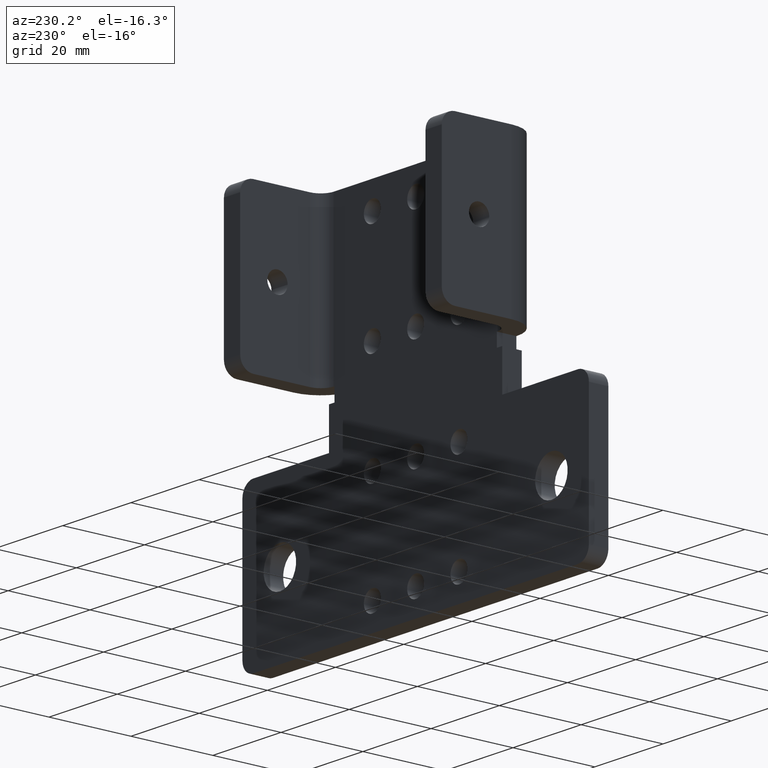
[diagram: clean part render]
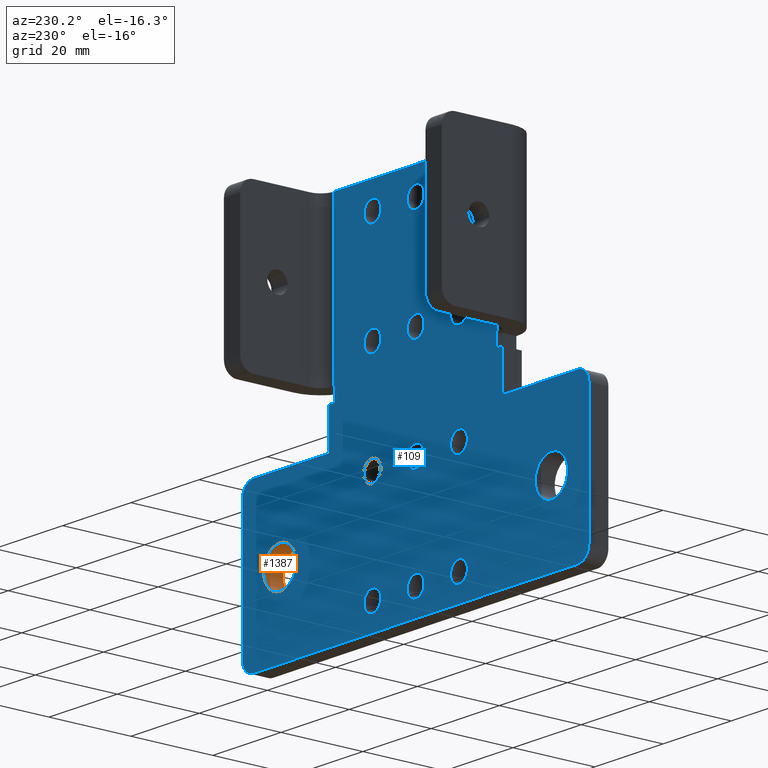
[diagram: same view with the hole feature highlighted: cylindrical wall and planar end face, labeled with their STEP entity ids]
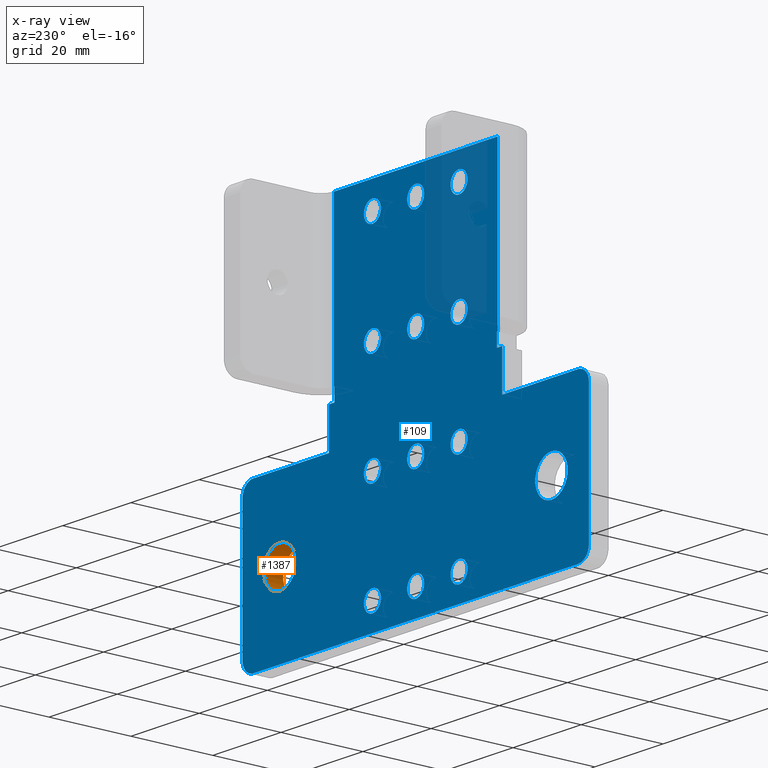
[diagram: x-ray of the same camera — body ghosted, the hole faces saturated]
A machine part, auxiliary view. The highlighted faces form one hole feature of diameter 9.525 mm: the cylindrical wall (entity #1387, orange) and its adjacent planar end face (entity #109, blue) — they share a circular edge in the B-rep.
The next image is the same camera in x-ray (body ghosted, the hole faces saturated) — the bore reads through the body.
Wall:
#104 = EDGE_LOOP ( 'NONE', ( #286 ) ) ;
#269 = CARTESIAN_POINT ( 'NONE',  ( 3.567499999999999449, 0.1875000000000000278, -0.5625000000000001110 ) ) ;
#285 = DIRECTION ( 'NONE',  ( 0.0000000000000000000, 0.0000000000000000000, 1.000000000000000000 ) ) ;
#286 = ORIENTED_EDGE ( 'NONE', *, *, #1227, .F. ) ;
#349 = CARTESIAN_POINT ( 'NONE',  ( 3.567499999999999449, 0.1875000000000000278, -0.7500000000000001110 ) ) ;
#433 = EDGE_CURVE ( 'NONE', #1686, #1686, #971, .T. ) ;
#541 = CARTESIAN_POINT ( 'NONE',  ( 3.567499999999999449, 0.0000000000000000000, -0.7500000000000001110 ) ) ;
#788 = DIRECTION ( 'NONE',  ( 0.0000000000000000000, 1.000000000000000000, -0.0000000000000000000 ) ) ;
#841 = AXIS2_PLACEMENT_3D ( 'NONE', #349, #856, #984 ) ;
#848 = VERTEX_POINT ( 'NONE', #1755 ) ;
#855 = ORIENTED_EDGE ( 'NONE', *, *, #433, .T. ) ;
#856 = DIRECTION ( 'NONE',  ( 0.0000000000000000000, 1.000000000000000000, -0.0000000000000000000 ) ) ;
#871 = DIRECTION ( 'NONE',  ( 0.0000000000000000000, 0.0000000000000000000, 1.000000000000000000 ) ) ;
#874 = AXIS2_PLACEMENT_3D ( 'NONE', #541, #788, #871 ) ;
#971 = CIRCLE ( 'NONE', #841, 0.1874999999999999167 ) ;
#984 = DIRECTION ( 'NONE',  ( 0.0000000000000000000, 0.0000000000000000000, 1.000000000000000000 ) ) ;
#1056 = DIRECTION ( 'NONE',  ( 0.0000000000000000000, 1.000000000000000000, -0.0000000000000000000 ) ) ;
#1138 = AXIS2_PLACEMENT_3D ( 'NONE', #1342, #1056, #285 ) ;
#1203 = CIRCLE ( 'NONE', #1138, 0.1874999999999999167 ) ;
#1227 = EDGE_CURVE ( 'NONE', #848, #848, #1203, .T. ) ;
#1234 = FACE_OUTER_BOUND ( 'NONE', #1721, .T. ) ;
#1342 = CARTESIAN_POINT ( 'NONE',  ( 3.567499999999999449, 0.0000000000000000000, -0.7500000000000001110 ) ) ;
#1387 = ADVANCED_FACE ( 'NONE', ( #1791, #1234 ), #1646, .F. ) ;
#1646 = CYLINDRICAL_SURFACE ( 'NONE', #874, 0.1874999999999999167 ) ;
#1686 = VERTEX_POINT ( 'NONE', #269 ) ;
#1721 = EDGE_LOOP ( 'NONE', ( #855 ) ) ;
#1755 = CARTESIAN_POINT ( 'NONE',  ( 3.567499999999999449, 0.0000000000000000000, -0.5625000000000001110 ) ) ;
#1791 = FACE_OUTER_BOUND ( 'NONE', #104, .T. ) ;
End face:
#3 = DIRECTION ( 'NONE',  ( -1.000000000000000000, 0.0000000000000000000, 0.0000000000000000000 ) ) ;
#15 = CARTESIAN_POINT ( 'NONE',  ( 2.999999999999999556, 0.1875000000000000278, -2.372753173347996454E-16 ) ) ;
#21 = CARTESIAN_POINT ( 'NONE',  ( 3.875000000000000000, 0.1875000000000000278, -1.500000000000000222 ) ) ;
#22 = ORIENTED_EDGE ( 'NONE', *, *, #1204, .F. ) ;
#25 = EDGE_LOOP ( 'NONE', ( #102 ) ) ;
#26 = EDGE_CURVE ( 'NONE', #198, #1175, #1494, .T. ) ;
#27 = DIRECTION ( 'NONE',  ( -0.0000000000000000000, -1.000000000000000000, 0.0000000000000000000 ) ) ;
#33 = VECTOR ( 'NONE', #319, 39.37007874015748143 ) ;
#44 = EDGE_CURVE ( 'NONE', #404, #586, #1525, .T. ) ;
#48 = DIRECTION ( 'NONE',  ( -0.0000000000000000000, -0.0000000000000000000, -1.000000000000000000 ) ) ;
#51 = DIRECTION ( 'NONE',  ( 0.0000000000000000000, 0.0000000000000000000, 1.000000000000000000 ) ) ;
#54 = EDGE_CURVE ( 'NONE', #1110, #1110, #1790, .T. ) ;
#58 = AXIS2_PLACEMENT_3D ( 'NONE', #502, #27, #671 ) ;
#71 = CIRCLE ( 'NONE', #399, 0.09800000000000015643 ) ;
#74 = EDGE_CURVE ( 'NONE', #1281, #1800, #649, .T. ) ;
#84 = CARTESIAN_POINT ( 'NONE',  ( 1.499999999999999778, 0.1875000000000000278, -0.2500000000000000555 ) ) ;
#90 = EDGE_CURVE ( 'NONE', #1679, #875, #1132, .T. ) ;
#95 = VERTEX_POINT ( 'NONE', #1334 ) ;
#102 = ORIENTED_EDGE ( 'NONE', *, *, #305, .T. ) ;
#106 = AXIS2_PLACEMENT_3D ( 'NONE', #1380, #142, #51 ) ;
#107 = VECTOR ( 'NONE', #468, 39.37007874015748143 ) ;
#109 = ADVANCED_FACE ( 'NONE', ( #472, #883, #1055, #669, #1294, #552, #271, #447, #868, #1502, #471, #638, #1013, #1379, #1742 ), #680, .T. ) ;
#112 = VERTEX_POINT ( 'NONE', #200 ) ;
#113 = ORIENTED_EDGE ( 'NONE', *, *, #637, .F. ) ;
#115 = VECTOR ( 'NONE', #397, 39.37007874015748143 ) ;
#123 = CARTESIAN_POINT ( 'NONE',  ( 1.500000000000020872, 0.1875000000000000278, 1.750000000000000000 ) ) ;
#127 = DIRECTION ( 'NONE',  ( 1.000000000000000000, 0.0000000000000000000, -1.092739197465711007E-15 ) ) ;
#132 = CARTESIAN_POINT ( 'NONE',  ( 2.500000000000010658, 0.1875000000000000278, 0.8480000000000000870 ) ) ;
#134 = LINE ( 'NONE', #424, #1292 ) ;
#142 = DIRECTION ( 'NONE',  ( 0.0000000000000000000, 1.000000000000000000, -0.0000000000000000000 ) ) ;
#150 = DIRECTION ( 'NONE',  ( 0.0000000000000000000, 1.000000000000000000, -0.0000000000000000000 ) ) ;
#164 = LINE ( 'NONE', #1348, #581 ) ;
#168 = EDGE_CURVE ( 'NONE', #1451, #1014, #1465, .T. ) ;
#191 = AXIS2_PLACEMENT_3D ( 'NONE', #1649, #755, #729 ) ;
#197 = EDGE_CURVE ( 'NONE', #112, #1544, #1190, .T. ) ;
#198 = VERTEX_POINT ( 'NONE', #1039 ) ;
#200 = CARTESIAN_POINT ( 'NONE',  ( 2.945000000000000284, 0.1874999999999999722, 0.4999999999999996114 ) ) ;
#204 = VERTEX_POINT ( 'NONE', #132 ) ;
#214 = DIRECTION ( 'NONE',  ( 0.0000000000000000000, 0.0000000000000000000, 1.000000000000000000 ) ) ;
#218 = EDGE_CURVE ( 'NONE', #497, #1014, #799, .T. ) ;
#220 = EDGE_LOOP ( 'NONE', ( #1145 ) ) ;
#230 = AXIS2_PLACEMENT_3D ( 'NONE', #1176, #358, #1489 ) ;
#239 = DIRECTION ( 'NONE',  ( -0.0000000000000000000, -1.000000000000000000, 0.0000000000000000000 ) ) ;
#243 = EDGE_CURVE ( 'NONE', #586, #1693, #723, .T. ) ;
#252 = VECTOR ( 'NONE', #48, 39.37007874015748143 ) ;
#259 = EDGE_CURVE ( 'NONE', #540, #540, #334, .T. ) ;
#260 = EDGE_LOOP ( 'NONE', ( #1561 ) ) ;
#263 = CARTESIAN_POINT ( 'NONE',  ( 1.499999999999999778, 0.1875000000000000278, -0.1519999999999999130 ) ) ;
#269 = CARTESIAN_POINT ( 'NONE',  ( 3.567499999999999449, 0.1875000000000000278, -0.5625000000000001110 ) ) ;
#271 = FACE_BOUND ( 'NONE', #25, .T. ) ;
#276 = AXIS2_PLACEMENT_3D ( 'NONE', #694, #1109, #1371 ) ;
#289 = CARTESIAN_POINT ( 'NONE',  ( 0.4325000000000001066, 0.1875000000000000278, -0.5625000000000001110 ) ) ;
#300 = EDGE_CURVE ( 'NONE', #925, #1693, #1362, .T. ) ;
#304 = AXIS2_PLACEMENT_3D ( 'NONE', #1789, #595, #378 ) ;
#305 = EDGE_CURVE ( 'NONE', #1278, #1278, #1083, .T. ) ;
#306 = DIRECTION ( 'NONE',  ( 0.0000000000000000000, 0.0000000000000000000, 1.000000000000000000 ) ) ;
#310 = EDGE_CURVE ( 'NONE', #204, #204, #381, .T. ) ;
#312 = CARTESIAN_POINT ( 'NONE',  ( 1.000000000000000222, 0.1875000000000000278, 0.3749999999999992784 ) ) ;
#317 = DIRECTION ( 'NONE',  ( 0.0000000000000000000, 0.0000000000000000000, 1.000000000000000000 ) ) ;
#319 = DIRECTION ( 'NONE',  ( -0.0000000000000000000, -0.0000000000000000000, -1.000000000000000000 ) ) ;
#334 = CIRCLE ( 'NONE', #390, 0.09800000000000015643 ) ;
#343 = CARTESIAN_POINT ( 'NONE',  ( 2.999999999999999556, 0.1875000000000000278, 3.668481591492009622E-16 ) ) ;
#349 = CARTESIAN_POINT ( 'NONE',  ( 3.567499999999999449, 0.1875000000000000278, -0.7500000000000001110 ) ) ;
#354 = CARTESIAN_POINT ( 'NONE',  ( 1.500000000000010214, 0.1875000000000000278, 0.7499999999999998890 ) ) ;
#358 = DIRECTION ( 'NONE',  ( 0.0000000000000000000, 1.000000000000000000, -0.0000000000000000000 ) ) ;
#363 = VECTOR ( 'NONE', #1298, 39.37007874015748143 ) ;
#369 = LINE ( 'NONE', #593, #1028 ) ;
#372 = EDGE_CURVE ( 'NONE', #958, #958, #1700, .T. ) ;
#378 = DIRECTION ( 'NONE',  ( 0.0000000000000000000, 0.0000000000000000000, 1.000000000000000000 ) ) ;
#380 = CARTESIAN_POINT ( 'NONE',  ( 2.000000000000010214, 0.1875000000000000278, 0.7499999999999998890 ) ) ;
#381 = CIRCLE ( 'NONE', #511, 0.09800000000000015643 ) ;
#390 = AXIS2_PLACEMENT_3D ( 'NONE', #84, #466, #317 ) ;
#397 = DIRECTION ( 'NONE',  ( 1.000000000000000000, -0.0000000000000000000, 0.0000000000000000000 ) ) ;
#398 = CARTESIAN_POINT ( 'NONE',  ( 1.054999999999999938, 0.1875000000000000555, 0.4999999999999993339 ) ) ;
#399 = AXIS2_PLACEMENT_3D ( 'NONE', #354, #455, #306 ) ;
#402 = DIRECTION ( 'NONE',  ( -0.0000000000000000000, -1.000000000000000000, 0.0000000000000000000 ) ) ;
#404 = VERTEX_POINT ( 'NONE', #1414 ) ;
#424 = CARTESIAN_POINT ( 'NONE',  ( 0.0000000000000000000, 0.1875000000000000278, 1.999999999999999778 ) ) ;
#432 = VERTEX_POINT ( 'NONE', #1795 ) ;
#433 = EDGE_CURVE ( 'NONE', #1686, #1686, #971, .T. ) ;
#447 = FACE_BOUND ( 'NONE', #260, .T. ) ;
#455 = DIRECTION ( 'NONE',  ( 0.0000000000000000000, 1.000000000000000000, -0.0000000000000000000 ) ) ;
#458 = ORIENTED_EDGE ( 'NONE', *, *, #44, .T. ) ;
#459 = EDGE_CURVE ( 'NONE', #626, #626, #1066, .T. ) ;
#464 = DIRECTION ( 'NONE',  ( 0.0000000000000000000, 0.0000000000000000000, 1.000000000000000000 ) ) ;
#466 = DIRECTION ( 'NONE',  ( 0.0000000000000000000, 1.000000000000000000, -0.0000000000000000000 ) ) ;
#468 = DIRECTION ( 'NONE',  ( 0.0000000000000000000, 0.0000000000000000000, 1.000000000000000000 ) ) ;
#469 = LINE ( 'NONE', #1177, #363 ) ;
#471 = FACE_BOUND ( 'NONE', #1804, .T. ) ;
#472 = FACE_OUTER_BOUND ( 'NONE', #1516, .T. ) ;
#479 = CARTESIAN_POINT ( 'NONE',  ( 1.500000000000010214, 0.1875000000000000278, 0.8480000000000000870 ) ) ;
#484 = EDGE_LOOP ( 'NONE', ( #746 ) ) ;
#488 = VERTEX_POINT ( 'NONE', #800 ) ;
#490 = ORIENTED_EDGE ( 'NONE', *, *, #927, .F. ) ;
#497 = VERTEX_POINT ( 'NONE', #571 ) ;
#502 = CARTESIAN_POINT ( 'NONE',  ( 2.000000000000020872, 0.1875000000000000278, 1.750000000000000000 ) ) ;
#503 = CARTESIAN_POINT ( 'NONE',  ( 2.000000000000010214, 0.1875000000000000278, 0.8479999999999997540 ) ) ;
#511 = AXIS2_PLACEMENT_3D ( 'NONE', #1218, #239, #961 ) ;
#519 = VECTOR ( 'NONE', #3, 39.37007874015748143 ) ;
#540 = VERTEX_POINT ( 'NONE', #263 ) ;
#548 = ORIENTED_EDGE ( 'NONE', *, *, #26, .F. ) ;
#552 = FACE_BOUND ( 'NONE', #1583, .T. ) ;
#568 = DIRECTION ( 'NONE',  ( 1.000000000000000000, 1.092739197465705090E-15, 0.0000000000000000000 ) ) ;
#571 = CARTESIAN_POINT ( 'NONE',  ( 1.062500000000000000, 0.1875000000000000278, 0.3749999999999992784 ) ) ;
#579 = EDGE_CURVE ( 'NONE', #1774, #1774, #623, .T. ) ;
#581 = VECTOR ( 'NONE', #1368, 39.37007874015748143 ) ;
#586 = VERTEX_POINT ( 'NONE', #686 ) ;
#588 = DIRECTION ( 'NONE',  ( -0.0000000000000000000, -1.000000000000000000, 0.0000000000000000000 ) ) ;
#591 = CARTESIAN_POINT ( 'NONE',  ( 1.500000000000020872, 0.1875000000000000278, 1.848000000000000087 ) ) ;
#593 = CARTESIAN_POINT ( 'NONE',  ( 1.062500000000000000, 0.1875000000000000278, 0.3749999999999992784 ) ) ;
#595 = DIRECTION ( 'NONE',  ( 0.0000000000000000000, 1.000000000000000000, -0.0000000000000000000 ) ) ;
#619 = AXIS2_PLACEMENT_3D ( 'NONE', #1009, #1271, #1317 ) ;
#623 = CIRCLE ( 'NONE', #276, 0.1874999999999999722 ) ;
#625 = DIRECTION ( 'NONE',  ( 1.000000000000000000, -0.0000000000000000000, 0.0000000000000000000 ) ) ;
#626 = VERTEX_POINT ( 'NONE', #591 ) ;
#637 = EDGE_CURVE ( 'NONE', #1281, #488, #469, .T. ) ;
#638 = FACE_BOUND ( 'NONE', #1052, .T. ) ;
#649 = LINE ( 'NONE', #1528, #1645 ) ;
#668 = CARTESIAN_POINT ( 'NONE',  ( 2.500000000000000000, 0.1875000000000000278, -0.1519999999999999407 ) ) ;
#669 = FACE_BOUND ( 'NONE', #220, .T. ) ;
#671 = DIRECTION ( 'NONE',  ( 0.0000000000000000000, 0.0000000000000000000, 1.000000000000000000 ) ) ;
#680 = PLANE ( 'NONE',  #106 ) ;
#686 = CARTESIAN_POINT ( 'NONE',  ( 4.000000000000000000, 0.1875000000000000278, -1.375000000000000222 ) ) ;
#689 = AXIS2_PLACEMENT_3D ( 'NONE', #1802, #1697, #993 ) ;
#694 = CARTESIAN_POINT ( 'NONE',  ( 0.4325000000000001066, 0.1875000000000000278, -0.7500000000000001110 ) ) ;
#696 = EDGE_CURVE ( 'NONE', #1800, #1596, #1047, .T. ) ;
#701 = ORIENTED_EDGE ( 'NONE', *, *, #1637, .F. ) ;
#718 = EDGE_CURVE ( 'NONE', #1815, #1815, #1643, .T. ) ;
#723 = CIRCLE ( 'NONE', #191, 0.1249999999999999029 ) ;
#724 = CARTESIAN_POINT ( 'NONE',  ( 0.0000000000000000000, 0.1875000000000000278, -1.500000000000000222 ) ) ;
#728 = ORIENTED_EDGE ( 'NONE', *, *, #1694, .T. ) ;
#729 = DIRECTION ( 'NONE',  ( 0.0000000000000000000, 0.0000000000000000000, 1.000000000000000000 ) ) ;
#732 = EDGE_CURVE ( 'NONE', #760, #760, #1214, .T. ) ;
#733 = ORIENTED_EDGE ( 'NONE', *, *, #579, .F. ) ;
#744 = CARTESIAN_POINT ( 'NONE',  ( 1.062500000000000000, 0.1875000000000000278, 0.0000000000000000000 ) ) ;
#746 = ORIENTED_EDGE ( 'NONE', *, *, #718, .T. ) ;
#749 = VECTOR ( 'NONE', #1134, 39.37007874015748143 ) ;
#750 = EDGE_LOOP ( 'NONE', ( #1372 ) ) ;
#755 = DIRECTION ( 'NONE',  ( 0.0000000000000000000, 1.000000000000000000, -0.0000000000000000000 ) ) ;
#760 = VERTEX_POINT ( 'NONE', #1381 ) ;
#766 = DIRECTION ( 'NONE',  ( 0.0000000000000000000, 1.000000000000000000, -0.0000000000000000000 ) ) ;
#780 = AXIS2_PLACEMENT_3D ( 'NONE', #123, #150, #464 ) ;
#797 = ORIENTED_EDGE ( 'NONE', *, *, #1146, .T. ) ;
#799 = LINE ( 'NONE', #744, #1549 ) ;
#800 = CARTESIAN_POINT ( 'NONE',  ( 2.937500000000000000, 0.1874999999999999722, 0.4999999999999996114 ) ) ;
#811 = CARTESIAN_POINT ( 'NONE',  ( 2.000000000000000000, 0.1875000000000000278, -0.2500000000000000555 ) ) ;
#812 = VECTOR ( 'NONE', #568, 39.37007874015748143 ) ;
#814 = EDGE_LOOP ( 'NONE', ( #1045 ) ) ;
#820 = DIRECTION ( 'NONE',  ( -0.0000000000000000000, -1.000000000000000000, 0.0000000000000000000 ) ) ;
#827 = AXIS2_PLACEMENT_3D ( 'NONE', #380, #820, #214 ) ;
#836 = DIRECTION ( 'NONE',  ( 1.000000000000000000, -0.0000000000000000000, 0.0000000000000000000 ) ) ;
#839 = CARTESIAN_POINT ( 'NONE',  ( 1.062500000000000000, 0.1875000000000000278, 0.4999999999999993339 ) ) ;
#841 = AXIS2_PLACEMENT_3D ( 'NONE', #349, #856, #984 ) ;
#845 = EDGE_LOOP ( 'NONE', ( #733 ) ) ;
#856 = DIRECTION ( 'NONE',  ( 0.0000000000000000000, 1.000000000000000000, -0.0000000000000000000 ) ) ;
#868 = FACE_BOUND ( 'NONE', #484, .T. ) ;
#875 = VERTEX_POINT ( 'NONE', #1587 ) ;
#883 = FACE_BOUND ( 'NONE', #1010, .T. ) ;
#886 = ORIENTED_EDGE ( 'NONE', *, *, #732, .T. ) ;
#887 = DIRECTION ( 'NONE',  ( 0.0000000000000000000, 0.0000000000000000000, 1.000000000000000000 ) ) ;
#893 = VECTOR ( 'NONE', #625, 39.37007874015748143 ) ;
#907 = ORIENTED_EDGE ( 'NONE', *, *, #1715, .T. ) ;
#913 = ORIENTED_EDGE ( 'NONE', *, *, #1396, .T. ) ;
#915 = CARTESIAN_POINT ( 'NONE',  ( 2.945000000000000284, 0.1874999999999999722, 0.4999999999999996114 ) ) ;
#922 = EDGE_CURVE ( 'NONE', #198, #1679, #1003, .T. ) ;
#925 = VERTEX_POINT ( 'NONE', #1738 ) ;
#926 = EDGE_CURVE ( 'NONE', #1504, #1504, #71, .T. ) ;
#927 = EDGE_CURVE ( 'NONE', #432, #432, #1574, .T. ) ;
#939 = CARTESIAN_POINT ( 'NONE',  ( 0.0000000000000000000, 0.1875000000000000278, 0.0000000000000000000 ) ) ;
#943 = LINE ( 'NONE', #915, #519 ) ;
#957 = DIRECTION ( 'NONE',  ( 0.0000000000000000000, 0.0000000000000000000, 1.000000000000000000 ) ) ;
#958 = VERTEX_POINT ( 'NONE', #503 ) ;
#961 = DIRECTION ( 'NONE',  ( 0.0000000000000000000, 0.0000000000000000000, 1.000000000000000000 ) ) ;
#966 = CARTESIAN_POINT ( 'NONE',  ( 2.000000000000000000, 0.1875000000000000278, -0.1520000000000001905 ) ) ;
#967 = ORIENTED_EDGE ( 'NONE', *, *, #197, .F. ) ;
#971 = CIRCLE ( 'NONE', #841, 0.1874999999999999167 ) ;
#981 = LINE ( 'NONE', #1481, #893 ) ;
#984 = DIRECTION ( 'NONE',  ( 0.0000000000000000000, 0.0000000000000000000, 1.000000000000000000 ) ) ;
#993 = DIRECTION ( 'NONE',  ( 0.0000000000000000000, 0.0000000000000000000, 1.000000000000000000 ) ) ;
#995 = ORIENTED_EDGE ( 'NONE', *, *, #218, .T. ) ;
#1001 = CARTESIAN_POINT ( 'NONE',  ( 3.875000000000000000, 0.1875000000000000278, 3.668481591492009622E-16 ) ) ;
#1002 = CARTESIAN_POINT ( 'NONE',  ( 2.945000000000000284, 0.1874999999999999722, 0.4999999999999993339 ) ) ;
#1003 = CIRCLE ( 'NONE', #619, 0.1250000000000000000 ) ;
#1009 = CARTESIAN_POINT ( 'NONE',  ( 0.1250000000000000000, 0.1875000000000000278, -0.1249999999999999861 ) ) ;
#1010 = EDGE_LOOP ( 'NONE', ( #907 ) ) ;
#1013 = FACE_BOUND ( 'NONE', #1141, .T. ) ;
#1014 = VERTEX_POINT ( 'NONE', #839 ) ;
#1028 = VECTOR ( 'NONE', #1630, 39.37007874015748143 ) ;
#1039 = CARTESIAN_POINT ( 'NONE',  ( 0.0000000000000000000, 0.1875000000000000278, -0.1249999999999999861 ) ) ;
#1044 = CARTESIAN_POINT ( 'NONE',  ( 2.999999999999999556, 0.1875000000000000278, 0.3749999999999990008 ) ) ;
#1045 = ORIENTED_EDGE ( 'NONE', *, *, #926, .F. ) ;
#1047 = LINE ( 'NONE', #15, #252 ) ;
#1052 = EDGE_LOOP ( 'NONE', ( #22 ) ) ;
#1055 = FACE_BOUND ( 'NONE', #750, .T. ) ;
#1060 = ORIENTED_EDGE ( 'NONE', *, *, #922, .T. ) ;
#1066 = CIRCLE ( 'NONE', #780, 0.09800000000000015643 ) ;
#1069 = EDGE_CURVE ( 'NONE', #1171, #1544, #134, .T. ) ;
#1078 = CARTESIAN_POINT ( 'NONE',  ( 3.875000000000000000, 0.1875000000000000278, -0.1249999999999995143 ) ) ;
#1083 = CIRCLE ( 'NONE', #1523, 0.09800000000000015643 ) ;
#1084 = VERTEX_POINT ( 'NONE', #312 ) ;
#1086 = CARTESIAN_POINT ( 'NONE',  ( 2.500000000000020872, 0.1875000000000000278, 1.750000000000000000 ) ) ;
#1101 = EDGE_CURVE ( 'NONE', #1266, #404, #1174, .T. ) ;
#1109 = DIRECTION ( 'NONE',  ( 0.0000000000000000000, 1.000000000000000000, -0.0000000000000000000 ) ) ;
#1110 = VERTEX_POINT ( 'NONE', #966 ) ;
#1117 = ORIENTED_EDGE ( 'NONE', *, *, #1186, .T. ) ;
#1132 = LINE ( 'NONE', #939, #115 ) ;
#1134 = DIRECTION ( 'NONE',  ( 1.000000000000000000, -0.0000000000000000000, 0.0000000000000000000 ) ) ;
#1141 = EDGE_LOOP ( 'NONE', ( #490 ) ) ;
#1145 = ORIENTED_EDGE ( 'NONE', *, *, #372, .T. ) ;
#1146 = EDGE_CURVE ( 'NONE', #925, #1175, #1447, .T. ) ;
#1154 = LINE ( 'NONE', #1597, #1237 ) ;
#1157 = CARTESIAN_POINT ( 'NONE',  ( 0.0000000000000000000, 0.1875000000000000278, 0.0000000000000000000 ) ) ;
#1171 = VERTEX_POINT ( 'NONE', #1355 ) ;
#1174 = CIRCLE ( 'NONE', #1776, 0.1250000000000000000 ) ;
#1175 = VERTEX_POINT ( 'NONE', #1333 ) ;
#1176 = CARTESIAN_POINT ( 'NONE',  ( 2.000000000000000000, 0.1875000000000000278, -1.250000000000000000 ) ) ;
#1177 = CARTESIAN_POINT ( 'NONE',  ( 2.937500000000000000, 0.1875000000000000278, 0.0000000000000000000 ) ) ;
#1186 = EDGE_CURVE ( 'NONE', #1596, #1266, #981, .T. ) ;
#1190 = LINE ( 'NONE', #1002, #107 ) ;
#1192 = AXIS2_PLACEMENT_3D ( 'NONE', #811, #1366, #1792 ) ;
#1193 = ORIENTED_EDGE ( 'NONE', *, *, #54, .T. ) ;
#1204 = EDGE_CURVE ( 'NONE', #95, #95, #1709, .T. ) ;
#1212 = ORIENTED_EDGE ( 'NONE', *, *, #90, .T. ) ;
#1214 = CIRCLE ( 'NONE', #1548, 0.09800000000000015643 ) ;
#1218 = CARTESIAN_POINT ( 'NONE',  ( 2.500000000000010658, 0.1875000000000000278, 0.7499999999999998890 ) ) ;
#1223 = ORIENTED_EDGE ( 'NONE', *, *, #243, .T. ) ;
#1237 = VECTOR ( 'NONE', #1450, 39.37007874015748143 ) ;
#1248 = DIRECTION ( 'NONE',  ( 0.0000000000000000000, 0.0000000000000000000, 1.000000000000000000 ) ) ;
#1264 = CARTESIAN_POINT ( 'NONE',  ( 0.1250000000000000000, 0.1875000000000000278, -1.375000000000000222 ) ) ;
#1266 = VERTEX_POINT ( 'NONE', #1001 ) ;
#1271 = DIRECTION ( 'NONE',  ( 0.0000000000000000000, 1.000000000000000000, -0.0000000000000000000 ) ) ;
#1278 = VERTEX_POINT ( 'NONE', #1711 ) ;
#1281 = VERTEX_POINT ( 'NONE', #1369 ) ;
#1292 = VECTOR ( 'NONE', #836, 39.37007874015748143 ) ;
#1294 = FACE_BOUND ( 'NONE', #814, .T. ) ;
#1295 = VECTOR ( 'NONE', #1310, 39.37007874015748143 ) ;
#1298 = DIRECTION ( 'NONE',  ( 0.0000000000000000000, 0.0000000000000000000, 1.000000000000000000 ) ) ;
#1310 = DIRECTION ( 'NONE',  ( -0.0000000000000000000, -0.0000000000000000000, -1.000000000000000000 ) ) ;
#1317 = DIRECTION ( 'NONE',  ( 0.0000000000000000000, 0.0000000000000000000, 1.000000000000000000 ) ) ;
#1333 = CARTESIAN_POINT ( 'NONE',  ( 0.0000000000000000000, 0.1875000000000000278, -1.375000000000000222 ) ) ;
#1334 = CARTESIAN_POINT ( 'NONE',  ( 2.000000000000000000, 0.1875000000000000278, -1.152000000000000135 ) ) ;
#1348 = CARTESIAN_POINT ( 'NONE',  ( 1.000000000000000222, 0.1875000000000000278, 7.654042494670949841E-18 ) ) ;
#1349 = VERTEX_POINT ( 'NONE', #1458 ) ;
#1355 = CARTESIAN_POINT ( 'NONE',  ( 1.054999999999999938, 0.1875000000000000555, 1.999999999999999778 ) ) ;
#1362 = LINE ( 'NONE', #724, #749 ) ;
#1366 = DIRECTION ( 'NONE',  ( -0.0000000000000000000, -1.000000000000000000, 0.0000000000000000000 ) ) ;
#1368 = DIRECTION ( 'NONE',  ( 0.0000000000000000000, 0.0000000000000000000, 1.000000000000000000 ) ) ;
#1369 = CARTESIAN_POINT ( 'NONE',  ( 2.937500000000000000, 0.1875000000000000278, 0.3749999999999990563 ) ) ;
#1371 = DIRECTION ( 'NONE',  ( 0.0000000000000000000, 0.0000000000000000000, 1.000000000000000000 ) ) ;
#1372 = ORIENTED_EDGE ( 'NONE', *, *, #459, .F. ) ;
#1379 = FACE_BOUND ( 'NONE', #1514, .T. ) ;
#1380 = CARTESIAN_POINT ( 'NONE',  ( 0.0000000000000000000, 0.1875000000000000278, 0.0000000000000000000 ) ) ;
#1381 = CARTESIAN_POINT ( 'NONE',  ( 1.499999999999999778, 0.1875000000000000278, -1.151999999999999913 ) ) ;
#1393 = EDGE_LOOP ( 'NONE', ( #1193 ) ) ;
#1396 = EDGE_CURVE ( 'NONE', #875, #1084, #164, .T. ) ;
#1403 = ORIENTED_EDGE ( 'NONE', *, *, #433, .F. ) ;
#1414 = CARTESIAN_POINT ( 'NONE',  ( 4.000000000000000000, 0.1875000000000000278, -0.1249999999999995143 ) ) ;
#1434 = CIRCLE ( 'NONE', #58, 0.09799999999999987887 ) ;
#1447 = CIRCLE ( 'NONE', #1509, 0.1249999999999999029 ) ;
#1450 = DIRECTION ( 'NONE',  ( 0.0000000000000000000, 0.0000000000000000000, -1.000000000000000000 ) ) ;
#1451 = VERTEX_POINT ( 'NONE', #398 ) ;
#1458 = CARTESIAN_POINT ( 'NONE',  ( 2.000000000000020872, 0.1875000000000000278, 1.847999999999999865 ) ) ;
#1465 = LINE ( 'NONE', #1678, #812 ) ;
#1466 = DIRECTION ( 'NONE',  ( 0.0000000000000000000, 0.0000000000000000000, 1.000000000000000000 ) ) ;
#1476 = CARTESIAN_POINT ( 'NONE',  ( 1.499999999999999778, 0.1875000000000000278, -1.250000000000000000 ) ) ;
#1481 = CARTESIAN_POINT ( 'NONE',  ( 0.0000000000000000000, 0.1875000000000000278, 3.668481591492009622E-16 ) ) ;
#1489 = DIRECTION ( 'NONE',  ( 0.0000000000000000000, 0.0000000000000000000, 1.000000000000000000 ) ) ;
#1494 = LINE ( 'NONE', #1157, #33 ) ;
#1502 = FACE_BOUND ( 'NONE', #845, .T. ) ;
#1504 = VERTEX_POINT ( 'NONE', #479 ) ;
#1509 = AXIS2_PLACEMENT_3D ( 'NONE', #1264, #1665, #887 ) ;
#1510 = CARTESIAN_POINT ( 'NONE',  ( 2.945000000000000284, 0.1874999999999999722, 1.999999999999999778 ) ) ;
#1514 = EDGE_LOOP ( 'NONE', ( #886 ) ) ;
#1516 = EDGE_LOOP ( 'NONE', ( #1652, #1117, #1801, #458, #1223, #1619, #797, #548, #1060, #1212, #913, #728, #995, #1808, #701, #1661, #967, #1580, #113, #1529 ) ) ;
#1523 = AXIS2_PLACEMENT_3D ( 'NONE', #1086, #402, #957 ) ;
#1525 = LINE ( 'NONE', #1606, #1295 ) ;
#1528 = CARTESIAN_POINT ( 'NONE',  ( 2.937500000000000000, 0.1875000000000000278, 0.3749999999999990563 ) ) ;
#1529 = ORIENTED_EDGE ( 'NONE', *, *, #74, .T. ) ;
#1544 = VERTEX_POINT ( 'NONE', #1510 ) ;
#1548 = AXIS2_PLACEMENT_3D ( 'NONE', #1476, #588, #1684 ) ;
#1549 = VECTOR ( 'NONE', #1248, 39.37007874015748143 ) ;
#1561 = ORIENTED_EDGE ( 'NONE', *, *, #259, .F. ) ;
#1574 = CIRCLE ( 'NONE', #304, 0.09800000000000015643 ) ;
#1580 = ORIENTED_EDGE ( 'NONE', *, *, #1757, .T. ) ;
#1583 = EDGE_LOOP ( 'NONE', ( #1764 ) ) ;
#1587 = CARTESIAN_POINT ( 'NONE',  ( 1.000000000000000222, 0.1875000000000000278, 7.654042494670949841E-18 ) ) ;
#1596 = VERTEX_POINT ( 'NONE', #343 ) ;
#1597 = CARTESIAN_POINT ( 'NONE',  ( 1.054999999999999938, 0.1875000000000000555, 1.999999999999999778 ) ) ;
#1606 = CARTESIAN_POINT ( 'NONE',  ( 4.000000000000000000, 0.1875000000000000278, 0.0000000000000000000 ) ) ;
#1619 = ORIENTED_EDGE ( 'NONE', *, *, #300, .F. ) ;
#1630 = DIRECTION ( 'NONE',  ( 1.000000000000000000, -0.0000000000000000000, -0.0000000000000000000 ) ) ;
#1637 = EDGE_CURVE ( 'NONE', #1171, #1451, #1154, .T. ) ;
#1643 = CIRCLE ( 'NONE', #689, 0.09800000000000012867 ) ;
#1645 = VECTOR ( 'NONE', #127, 39.37007874015748143 ) ;
#1649 = CARTESIAN_POINT ( 'NONE',  ( 3.875000000000000000, 0.1875000000000000278, -1.375000000000000222 ) ) ;
#1652 = ORIENTED_EDGE ( 'NONE', *, *, #696, .T. ) ;
#1659 = CARTESIAN_POINT ( 'NONE',  ( 0.1249999999999999861, 0.1875000000000000278, 0.0000000000000000000 ) ) ;
#1661 = ORIENTED_EDGE ( 'NONE', *, *, #1069, .T. ) ;
#1665 = DIRECTION ( 'NONE',  ( 0.0000000000000000000, 1.000000000000000000, -0.0000000000000000000 ) ) ;
#1678 = CARTESIAN_POINT ( 'NONE',  ( 1.054999999999999938, 0.1875000000000000555, 0.4999999999999993339 ) ) ;
#1679 = VERTEX_POINT ( 'NONE', #1659 ) ;
#1684 = DIRECTION ( 'NONE',  ( 0.0000000000000000000, 0.0000000000000000000, 1.000000000000000000 ) ) ;
#1686 = VERTEX_POINT ( 'NONE', #269 ) ;
#1693 = VERTEX_POINT ( 'NONE', #21 ) ;
#1694 = EDGE_CURVE ( 'NONE', #1084, #497, #369, .T. ) ;
#1697 = DIRECTION ( 'NONE',  ( -0.0000000000000000000, -1.000000000000000000, 0.0000000000000000000 ) ) ;
#1700 = CIRCLE ( 'NONE', #827, 0.09799999999999987887 ) ;
#1709 = CIRCLE ( 'NONE', #230, 0.09799999999999987887 ) ;
#1711 = CARTESIAN_POINT ( 'NONE',  ( 2.500000000000020872, 0.1875000000000000278, 1.848000000000000087 ) ) ;
#1715 = EDGE_CURVE ( 'NONE', #1349, #1349, #1434, .T. ) ;
#1738 = CARTESIAN_POINT ( 'NONE',  ( 0.1250000000000000000, 0.1875000000000000278, -1.500000000000000222 ) ) ;
#1742 = FACE_BOUND ( 'NONE', #1393, .T. ) ;
#1757 = EDGE_CURVE ( 'NONE', #112, #488, #943, .T. ) ;
#1764 = ORIENTED_EDGE ( 'NONE', *, *, #310, .T. ) ;
#1774 = VERTEX_POINT ( 'NONE', #289 ) ;
#1776 = AXIS2_PLACEMENT_3D ( 'NONE', #1078, #766, #1466 ) ;
#1789 = CARTESIAN_POINT ( 'NONE',  ( 2.500000000000000000, 0.1875000000000000278, -1.250000000000000000 ) ) ;
#1790 = CIRCLE ( 'NONE', #1192, 0.09799999999999987887 ) ;
#1792 = DIRECTION ( 'NONE',  ( 0.0000000000000000000, 0.0000000000000000000, 1.000000000000000000 ) ) ;
#1795 = CARTESIAN_POINT ( 'NONE',  ( 2.500000000000000000, 0.1875000000000000278, -1.151999999999999913 ) ) ;
#1800 = VERTEX_POINT ( 'NONE', #1044 ) ;
#1801 = ORIENTED_EDGE ( 'NONE', *, *, #1101, .T. ) ;
#1802 = CARTESIAN_POINT ( 'NONE',  ( 2.500000000000000000, 0.1875000000000000278, -0.2500000000000000555 ) ) ;
#1804 = EDGE_LOOP ( 'NONE', ( #1403 ) ) ;
#1808 = ORIENTED_EDGE ( 'NONE', *, *, #168, .F. ) ;
#1815 = VERTEX_POINT ( 'NONE', #668 ) ;